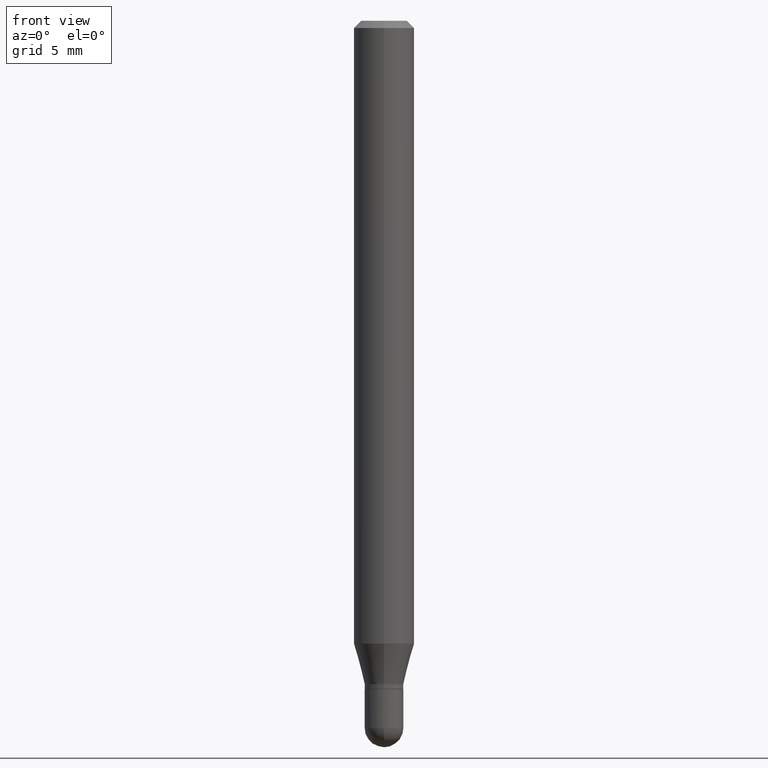
[diagram: clean part render]
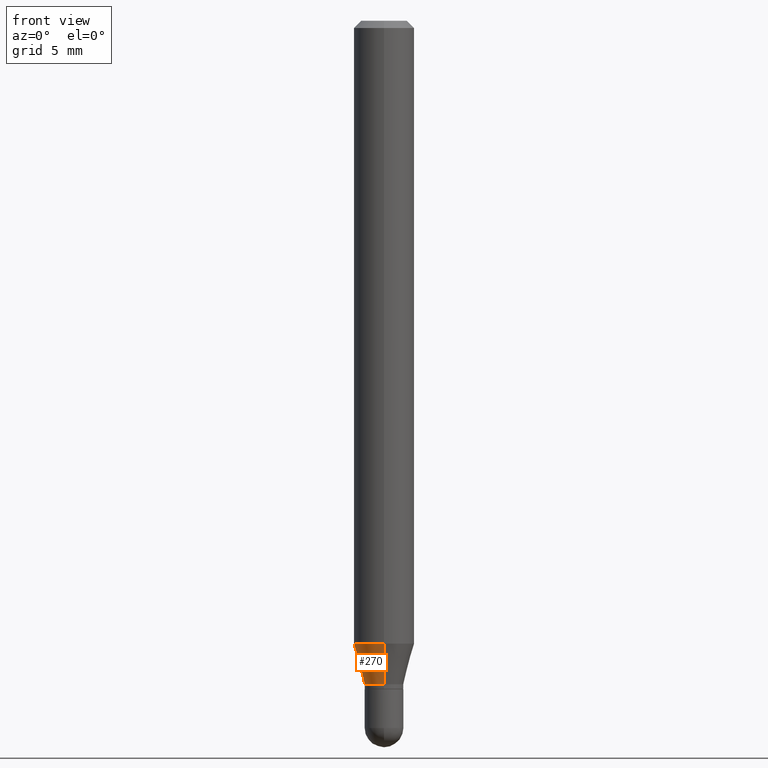
[diagram: same view with one face highlighted and labeled with its STEP entity id]
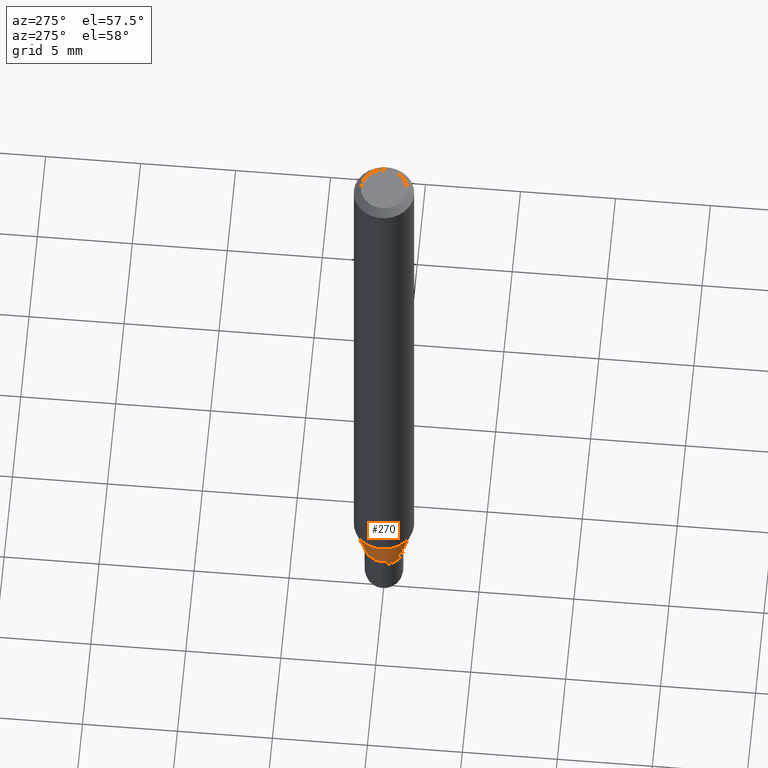
[diagram: same view with one face highlighted and labeled with its STEP entity id]
A machine part, front view. The second image highlights one B-rep face of the part: STEP entity #270.
A second angle (auxiliary view) of the same face is appended — the face is thin or edge-on in the first view.
In plain terms, the highlighted conical surface has half-angle 15 deg.
Its self-contained STEP definition (entity closure, byte-faithful):
#1 = DIRECTION ( 'NONE',  ( -1.807323732225330534E-15, -0.2588190451025182415, 0.9659258262890689783 ) ) ;
#6 = ORIENTED_EDGE ( 'NONE', *, *, #15, .T. ) ;
#10 = EDGE_CURVE ( 'NONE', #263, #469, #211, .T. ) ;
#15 = EDGE_CURVE ( 'NONE', #469, #183, #470, .T. ) ;
#31 = EDGE_CURVE ( 'NONE', #263, #181, #326, .T. ) ;
#54 = CARTESIAN_POINT ( 'NONE',  ( 3.641531520770834203E-16, 0.03999999999999514361, -1.370000000000000329 ) ) ;
#72 = VECTOR ( 'NONE', #286, 39.37007874015748143 ) ;
#107 = CIRCLE ( 'NONE', #436, 0.06250000000000000000 ) ;
#118 = ORIENTED_EDGE ( 'NONE', *, *, #324, .F. ) ;
#139 = DIRECTION ( 'NONE',  ( -6.982962677686265922E-15, -1.000000000000000000, 4.370956789862821150E-15 ) ) ;
#151 = CARTESIAN_POINT ( 'NONE',  ( -2.793185071074166094E-16, -0.04000000000000470540, -1.369999999999999885 ) ) ;
#181 = VERTEX_POINT ( 'NONE', #325 ) ;
#183 = VERTEX_POINT ( 'NONE', #485 ) ;
#190 = CONICAL_SURFACE ( 'NONE', #383, 0.03999999999999992450, 0.2617993877991502960 ) ;
#211 = CIRCLE ( 'NONE', #410, 0.03999999999999992450 ) ;
#224 = VECTOR ( 'NONE', #1, 39.37007874015748143 ) ;
#263 = VERTEX_POINT ( 'NONE', #54 ) ;
#270 = ADVANCED_FACE ( 'NONE', ( #414 ), #190, .T. ) ;
#279 = DIRECTION ( 'NONE',  ( -2.445465007158633692E-29, 3.491486779265324816E-15, 1.000000000000000000 ) ) ;
#286 = DIRECTION ( 'NONE',  ( 1.839019923739600710E-15, 0.2588190451025250138, 0.9659258262890670910 ) ) ;
#299 = CARTESIAN_POINT ( 'NONE',  ( 3.350287059807328626E-29, -4.783336887593495309E-15, -1.370000000000000107 ) ) ;
#324 = EDGE_CURVE ( 'NONE', #181, #183, #107, .T. ) ;
#325 = CARTESIAN_POINT ( 'NONE',  ( 4.440892098500941706E-16, 0.06249999999999554523, -1.286028856829700695 ) ) ;
#326 = LINE ( 'NONE', #486, #72 ) ;
#328 = CARTESIAN_POINT ( 'NONE',  ( 3.144938567573252550E-29, -4.490152751374598904E-15, -1.286028856829700473 ) ) ;
#337 = CARTESIAN_POINT ( 'NONE',  ( 3.350287059807328626E-29, -4.783336887593495309E-15, -1.370000000000000107 ) ) ;
#371 = DIRECTION ( 'NONE',  ( -2.445465007158633692E-29, 3.491486779265324816E-15, 1.000000000000000000 ) ) ;
#383 = AXIS2_PLACEMENT_3D ( 'NONE', #299, #371, #449 ) ;
#389 = CARTESIAN_POINT ( 'NONE',  ( -2.793185071074166094E-16, -0.04000000000000470540, -1.369999999999999885 ) ) ;
#404 = EDGE_LOOP ( 'NONE', ( #494, #468, #6, #118 ) ) ;
#410 = AXIS2_PLACEMENT_3D ( 'NONE', #337, #279, #505 ) ;
#414 = FACE_OUTER_BOUND ( 'NONE', #404, .T. ) ;
#436 = AXIS2_PLACEMENT_3D ( 'NONE', #328, #455, #139 ) ;
#449 = DIRECTION ( 'NONE',  ( -6.982962677686265133E-15, -1.000000000000000000, 6.829619984160670865E-15 ) ) ;
#455 = DIRECTION ( 'NONE',  ( -2.445465007158633692E-29, 3.491486779265324816E-15, 1.000000000000000000 ) ) ;
#468 = ORIENTED_EDGE ( 'NONE', *, *, #10, .T. ) ;
#469 = VERTEX_POINT ( 'NONE', #151 ) ;
#470 = LINE ( 'NONE', #389, #224 ) ;
#485 = CARTESIAN_POINT ( 'NONE',  ( -4.364351673553598685E-16, -0.06250000000000444089, -1.286028856829700251 ) ) ;
#486 = CARTESIAN_POINT ( 'NONE',  ( 2.842170943040729659E-16, 0.03999999999999514361, -1.370000000000000329 ) ) ;
#494 = ORIENTED_EDGE ( 'NONE', *, *, #31, .F. ) ;
#505 = DIRECTION ( 'NONE',  ( -6.982962677686265133E-15, -1.000000000000000000, 6.829619984160670865E-15 ) ) ;